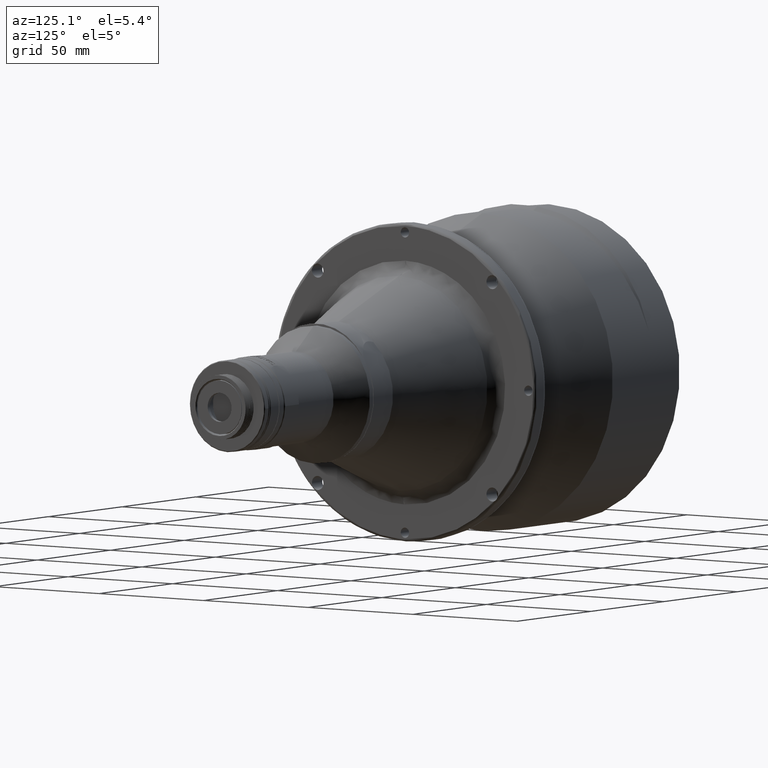
[diagram: clean part render]
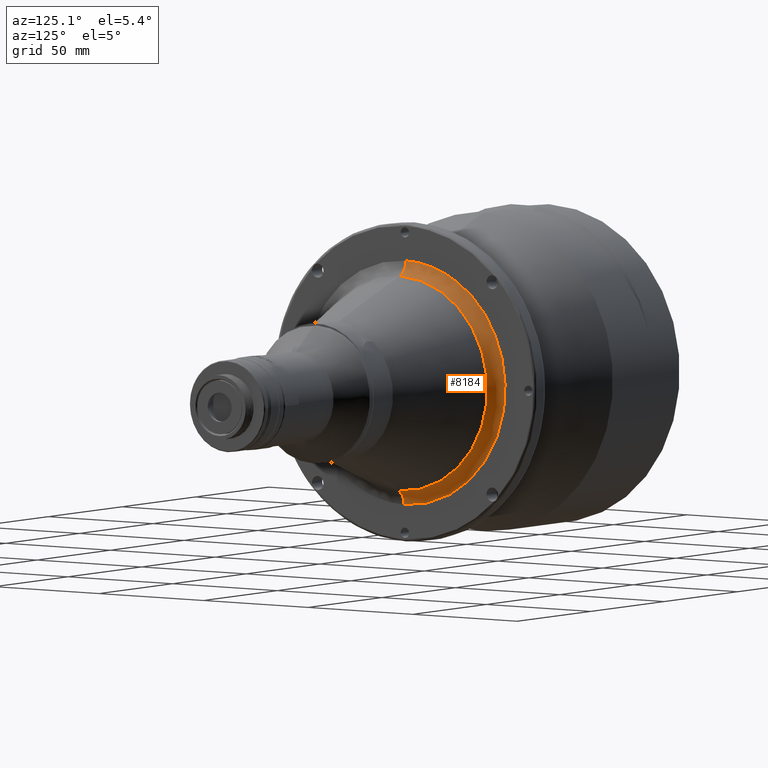
[diagram: same view with one face highlighted and labeled with its STEP entity id]
A machine part, auxiliary view. The second image highlights one B-rep face of the part: STEP entity #8184.
In plain terms, the highlighted face is a freeform B-spline surface patch.
Its self-contained STEP definition (entity closure, byte-faithful):
#25 =( BOUNDED_SURFACE ( )  B_SPLINE_SURFACE ( 3, 3, ( 
 ( #563, #18882, #16929, #4992 ),
 ( #3502, #9535, #15541, #2028 ),
 ( #13528, #16021, #6038, #31 ),
 ( #4186, #3068, #12968, #7151 ) ),
 .UNSPECIFIED., .F., .F., .T. ) 
 B_SPLINE_SURFACE_WITH_KNOTS ( ( 4, 4 ),
 ( 4, 4 ),
 ( 0.000000000000000000, 1.000000000000000000 ),
 ( 0.000000000000000000, 1.000000000000000000 ),
 .UNSPECIFIED. ) 
 GEOMETRIC_REPRESENTATION_ITEM ( )  RATIONAL_B_SPLINE_SURFACE ( (
 ( 1.000000000000000000, 0.3333333333332650916, 0.3333333333332650916, 1.000000000000000000),
 ( 0.8784618401562519496, 0.2928206133853571425, 0.2928206133853571425, 0.8784618401562519496),
 ( 0.8784618401562519496, 0.2928206133853571425, 0.2928206133853571425, 0.8784618401562519496),
 ( 1.000000000000000000, 0.3333333333332650916, 0.3333333333332650916, 1.000000000000000000) ) ) 
 REPRESENTATION_ITEM ( '' )  SURFACE ( )  );
#31 = CARTESIAN_POINT ( 'NONE',  ( -58.15176095799999700, 0.4735553700000000865, 43.44384798099999756 ) ) ;
#395 = AXIS2_PLACEMENT_3D ( 'NONE', #14688, #2650, #11745 ) ;
#483 = CARTESIAN_POINT ( 'NONE',  ( -58.15176095799999700, -0.4735553710000000582, -47.09385110299999866 ) ) ;
#563 = CARTESIAN_POINT ( 'NONE',  ( -54.17521835900000582, -0.4418885380000001084, -44.06670545699999764 ) ) ;
#721 = CARTESIAN_POINT ( 'NONE',  ( -58.15176095799998990, 94.80111213624161337, 45.07842986419169762 ) ) ;
#1045 = CARTESIAN_POINT ( 'NONE',  ( -58.15176095799999700, 0.000000000000000000, -1.825001561000003214 ) ) ;
#1238 = AXIS2_PLACEMENT_3D ( 'NONE', #1045, #2125, #6963 ) ;
#1442 = CARTESIAN_POINT ( 'NONE',  ( -58.15176095799999700, -0.5009740707657626135, -49.71490244520330037 ) ) ;
#2028 = CARTESIAN_POINT ( 'NONE',  ( -56.64285739600000369, 0.4511352989999999896, 41.30063328699999659 ) ) ;
#2125 = DIRECTION ( 'NONE',  ( 1.000000000000000000, -0.000000000000000000, 0.000000000000000000 ) ) ;
#2650 = DIRECTION ( 'NONE',  ( -1.000000000000000000, 0.000000000000000000, 0.000000000000000000 ) ) ;
#3060 = VERTEX_POINT ( 'NONE', #12100 ) ;
#3068 = CARTESIAN_POINT ( 'NONE',  ( -58.15176095799998990, 95.27882766900000888, -50.71685056799999813 ) ) ;
#3502 = CARTESIAN_POINT ( 'NONE',  ( -56.64285739600000369, -0.4511352989999999896, -44.95063640899999058 ) ) ;
#3514 = AXIS2_PLACEMENT_3D ( 'NONE', #17125, #3602, #18785 ) ;
#3601 = ORIENTED_EDGE ( 'NONE', *, *, #7095, .T. ) ;
#3602 = DIRECTION ( 'NONE',  ( -1.000000000000000000, 0.000000000000000000, 0.000000000000000000 ) ) ;
#3611 = CARTESIAN_POINT ( 'NONE',  ( -58.15176095799999700, 0.5009740707659975367, 46.06489932322600112 ) ) ;
#4186 = CARTESIAN_POINT ( 'NONE',  ( -58.15176095799999700, -0.5009740689999999663, -49.71490243000000930 ) ) ;
#4513 = ORIENTED_EDGE ( 'NONE', *, *, #8601, .T. ) ;
#4801 = CARTESIAN_POINT ( 'NONE',  ( -56.64285739600000369, -0.4511352990000001006, -44.95063640899999768 ) ) ;
#4992 = CARTESIAN_POINT ( 'NONE',  ( -54.17521835900000582, 0.4418885380000001084, 40.41670233500000364 ) ) ;
#5153 = VERTEX_POINT ( 'NONE', #16833 ) ;
#5997 = CARTESIAN_POINT ( 'NONE',  ( -56.64285739600000369, 0.4511352990000001006, 41.30063328699999659 ) ) ;
#6038 = CARTESIAN_POINT ( 'NONE',  ( -58.15176095799998279, 91.01125445500004219, 42.49673724000000874 ) ) ;
#6247 = EDGE_CURVE ( 'NONE', #3060, #8784, #16891, .T. ) ;
#6369 = EDGE_CURVE ( 'NONE', #12320, #5153, #14246, .T. ) ;
#6789 = CARTESIAN_POINT ( 'NONE',  ( -58.15176095799999700, 0.5009740707659975367, 46.06489932322600112 ) ) ;
#6963 = DIRECTION ( 'NONE',  ( 0.000000000000000000, 0.000000000000000000, -1.000000000000000000 ) ) ;
#7095 = EDGE_CURVE ( 'NONE', #13857, #8784, #16248, .T. ) ;
#7151 = CARTESIAN_POINT ( 'NONE',  ( -58.15176095799999700, 0.5009740689999999663, 46.06489930800000110 ) ) ;
#7154 = ORIENTED_EDGE ( 'NONE', *, *, #6369, .F. ) ;
#7489 = CARTESIAN_POINT ( 'NONE',  ( -54.17521835900002714, 0.4418885403483773788, 40.41670233507770860 ) ) ;
#7634 = DIRECTION ( 'NONE',  ( -0.000000000000000000, 0.9999874066140943540, -0.005018626626673422346 ) ) ;
#8161 = EDGE_CURVE ( 'NONE', #3060, #14900, #9508, .T. ) ;
#8184 = ADVANCED_FACE ( 'NONE', ( #9819 ), #25, .T. ) ;
#8601 = EDGE_CURVE ( 'NONE', #14900, #5153, #10452, .T. ) ;
#8784 = VERTEX_POINT ( 'NONE', #6789 ) ;
#9508 = CIRCLE ( 'NONE', #3514, 42.24401512099999678 ) ;
#9535 = CARTESIAN_POINT ( 'NONE',  ( -56.64285739599999658, 85.80013439600001846, -45.85290700699999178 ) ) ;
#9744 = CIRCLE ( 'NONE', #1238, 47.89252113076171469 ) ;
#9819 = FACE_OUTER_BOUND ( 'NONE', #18449, .T. ) ;
#9971 = CARTESIAN_POINT ( 'NONE',  ( -58.15176095800001121, 95.28150217829809776, -49.71752270226535586 ) ) ;
#10452 = CIRCLE ( 'NONE', #395, 42.24401512099999678 ) ;
#10765 = CARTESIAN_POINT ( 'NONE',  ( -58.15176095799999700, -5.274246317465980383E-09, -49.71752269176172945 ) ) ;
#10866 = LINE ( 'NONE', #10765, #17549 ) ;
#11213 = CARTESIAN_POINT ( 'NONE',  ( -58.15176095799999700, 0.4735553710000000582, 43.44384798099999756 ) ) ;
#11745 = DIRECTION ( 'NONE',  ( 1.642574429545126805E-15, 0.000000000000000000, 1.000000000000000000 ) ) ;
#12100 = CARTESIAN_POINT ( 'NONE',  ( -54.17521835900002714, 0.4418885403483773788, 40.41670233507770860 ) ) ;
#12320 = VERTEX_POINT ( 'NONE', #1442 ) ;
#12968 = CARTESIAN_POINT ( 'NONE',  ( -58.15176095799998990, 96.28077580699996929, 45.06295117000000516 ) ) ;
#13528 = CARTESIAN_POINT ( 'NONE',  ( -58.15176095799999700, -0.4735553710000001137, -47.09385110299999155 ) ) ;
#13774 = CARTESIAN_POINT ( 'NONE',  ( -54.17521835900007687, 5.173399790106506526E-15, -44.06901668200002575 ) ) ;
#13790 = ORIENTED_EDGE ( 'NONE', *, *, #6247, .F. ) ;
#13857 = VERTEX_POINT ( 'NONE', #17122 ) ;
#13948 = ORIENTED_EDGE ( 'NONE', *, *, #16786, .T. ) ;
#14246 =( BOUNDED_CURVE ( )  B_SPLINE_CURVE ( 3, ( #18316, #483, #4801, #15551 ),
 .UNSPECIFIED., .F., .F. ) 
 B_SPLINE_CURVE_WITH_KNOTS ( ( 4, 4 ),
 ( 0.000000000000000000, 1.000000000000000000 ),
 .UNSPECIFIED. ) 
 CURVE ( )  GEOMETRIC_REPRESENTATION_ITEM ( )  RATIONAL_B_SPLINE_CURVE ( ( 1.000000000000000000, 0.8784618401562679368, 0.8784618401562679368, 1.000000000000000000 ) ) 
 REPRESENTATION_ITEM ( '' )  );
#14354 = ORIENTED_EDGE ( 'NONE', *, *, #18530, .T. ) ;
#14688 = CARTESIAN_POINT ( 'NONE',  ( -54.17521835900007687, 0.000000000000000000, -1.825001561000000105 ) ) ;
#14900 = VERTEX_POINT ( 'NONE', #13774 ) ;
#15541 = CARTESIAN_POINT ( 'NONE',  ( -56.64285739599999658, 86.70240499500000908, 40.39836268800000596 ) ) ;
#15551 = CARTESIAN_POINT ( 'NONE',  ( -54.17521835900000582, -0.4418885333864205900, -44.06670545712496789 ) ) ;
#16021 = CARTESIAN_POINT ( 'NONE',  ( -58.15176095799998279, 90.06414371400001073, -48.04096184400000169 ) ) ;
#16248 =( BOUNDED_CURVE ( )  B_SPLINE_CURVE ( 3, ( #17371, #9971, #721, #18940 ),
 .UNSPECIFIED., .F., .T. ) 
 B_SPLINE_CURVE_WITH_KNOTS ( ( 4, 4 ),
 ( 0.000000000000000000, 1.000000000000000000 ),
 .UNSPECIFIED. ) 
 CURVE ( )  GEOMETRIC_REPRESENTATION_ITEM ( )  RATIONAL_B_SPLINE_CURVE ( ( 0.9896479049160434860, 0.3333513816386160511, 0.3368020800001296222, 1.000000000000584199 ) ) 
 REPRESENTATION_ITEM ( '' )  );
#16786 = EDGE_CURVE ( 'NONE', #18776, #13857, #10866, .T. ) ;
#16833 = CARTESIAN_POINT ( 'NONE',  ( -54.17521835900000582, -0.4418885333864205900, -44.06670545712496789 ) ) ;
#16891 =( BOUNDED_CURVE ( )  B_SPLINE_CURVE ( 3, ( #7489, #5997, #11213, #3611 ),
 .UNSPECIFIED., .F., .F. ) 
 B_SPLINE_CURVE_WITH_KNOTS ( ( 4, 4 ),
 ( 0.000000000000000000, 1.000000000000000000 ),
 .UNSPECIFIED. ) 
 CURVE ( )  GEOMETRIC_REPRESENTATION_ITEM ( )  RATIONAL_B_SPLINE_CURVE ( ( 1.000000000000000000, 0.8784618401562679368, 0.8784618401562679368, 1.000000000000000000 ) ) 
 REPRESENTATION_ITEM ( '' )  );
#16929 = CARTESIAN_POINT ( 'NONE',  ( -54.17521835900000582, 84.92529633100001263, 39.53292525900000243 ) ) ;
#17122 = CARTESIAN_POINT ( 'NONE',  ( -58.15176095799999700, -2.637124234651612241E-09, -49.71752270123286621 ) ) ;
#17125 = CARTESIAN_POINT ( 'NONE',  ( -54.17521835900007687, 0.000000000000000000, -1.825001561000000105 ) ) ;
#17371 = CARTESIAN_POINT ( 'NONE',  ( -58.15176095799999700, -2.637124234651612241E-09, -49.71752270123286621 ) ) ;
#17549 = VECTOR ( 'NONE', #7634, 1000.000000000000114 ) ;
#18295 = ORIENTED_EDGE ( 'NONE', *, *, #8161, .T. ) ;
#18316 = CARTESIAN_POINT ( 'NONE',  ( -58.15176095799999700, -0.5009740707657626135, -49.71490244520330037 ) ) ;
#18449 = EDGE_LOOP ( 'NONE', ( #13948, #3601, #13790, #18295, #4513, #7154, #14354 ) ) ;
#18530 = EDGE_CURVE ( 'NONE', #12320, #18776, #9744, .T. ) ;
#18776 = VERTEX_POINT ( 'NONE', #18867 ) ;
#18785 = DIRECTION ( 'NONE',  ( 1.642574429545126805E-15, 0.000000000000000000, 1.000000000000000000 ) ) ;
#18867 = CARTESIAN_POINT ( 'NONE',  ( -58.15176095799999700, -0.4807033044947077172, -49.71511019100316986 ) ) ;
#18882 = CARTESIAN_POINT ( 'NONE',  ( -54.17521835900000582, 84.04151925500002562, -44.95048253299999175 ) ) ;
#18940 = CARTESIAN_POINT ( 'NONE',  ( -58.15176095799999700, 0.5009740707659975367, 46.06489932322600112 ) ) ;